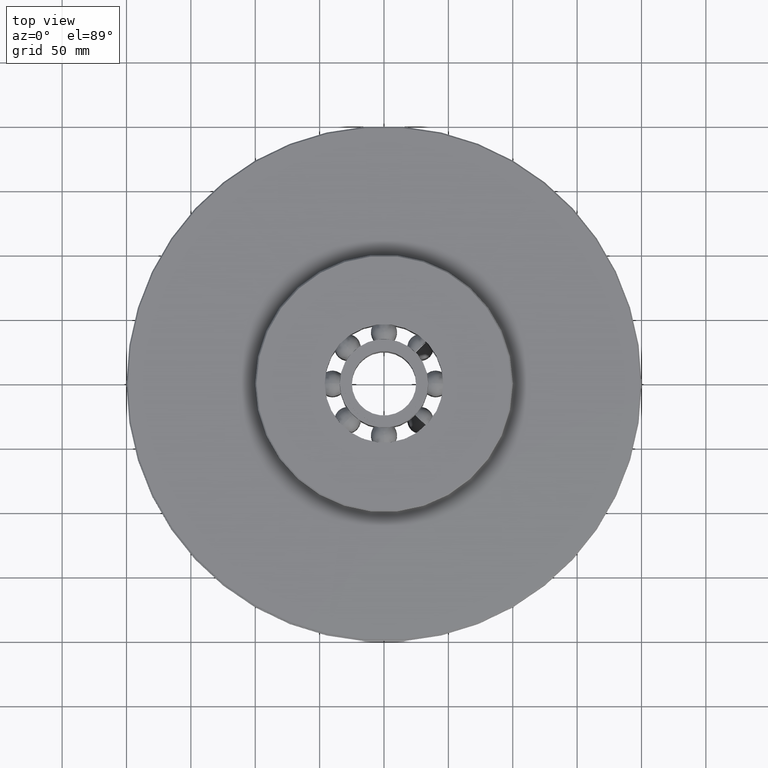
[diagram: clean part render]
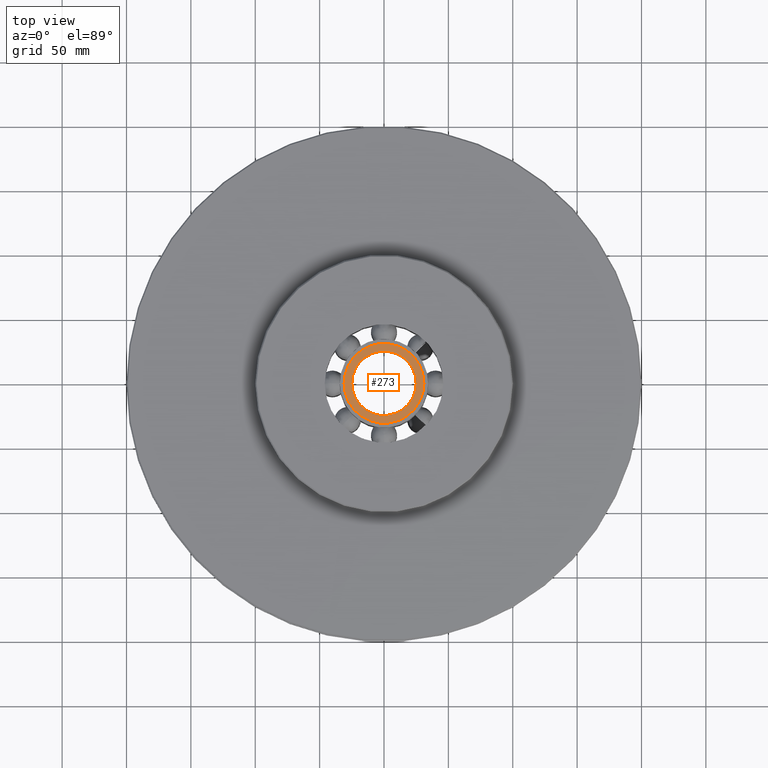
[diagram: same view with one face highlighted and labeled with its STEP entity id]
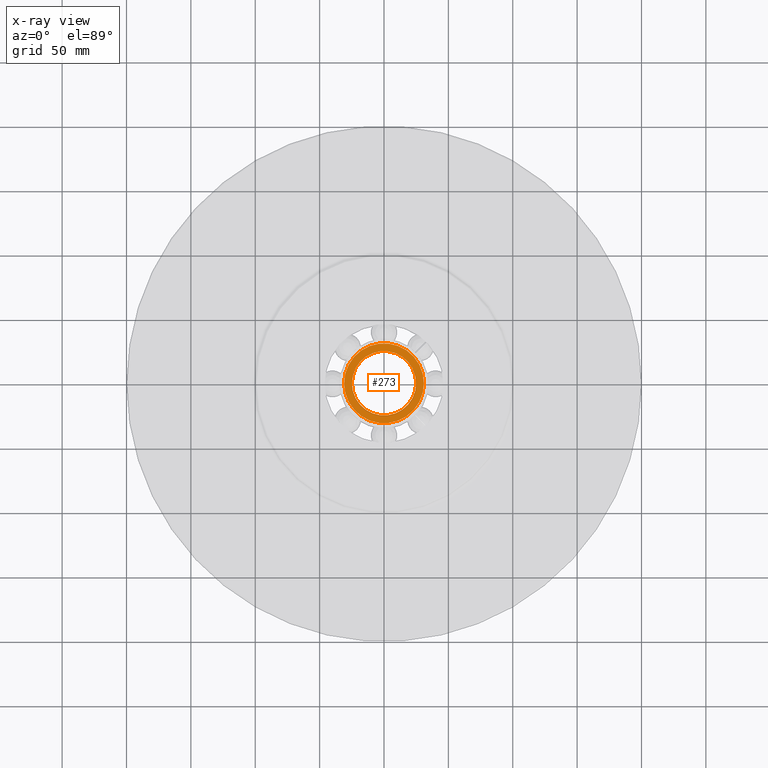
[diagram: x-ray of the same camera — body ghosted, the highlighted face saturated]
A machine part, top view. The second image highlights one B-rep face of the part: STEP entity #273.
The next image is the same camera in x-ray: the body ghosted, the highlighted face saturated — about 0% of this face is hidden behind the body in this view.
In plain terms, the highlighted planar face has unit normal (0, 0, 1).
Its self-contained STEP definition (entity closure, byte-faithful):
#273=ADVANCED_FACE('',(#611,#612),#613,.T.);
#611=FACE_BOUND('',#1021,.T.);
#612=FACE_OUTER_BOUND('',#1022,.T.);
#613=PLANE('',#1023);
#1021=EDGE_LOOP('',(#1875,#1876));
#1022=EDGE_LOOP('',(#1877,#1878));
#1023=AXIS2_PLACEMENT_3D('',#1879,#1880,#1881);
#1875=ORIENTED_EDGE('',*,*,#2956,.T.);
#1876=ORIENTED_EDGE('',*,*,#2822,.T.);
#1877=ORIENTED_EDGE('',*,*,#2941,.T.);
#1878=ORIENTED_EDGE('',*,*,#2953,.T.);
#1879=CARTESIAN_POINT('',(0.0,0.0,30.0));
#1880=DIRECTION('',(0.0,0.0,1.0));
#1881=DIRECTION('',(1.0,0.0,0.0));
#2822=EDGE_CURVE('',#3537,#3534,#3538,.T.);
#2941=EDGE_CURVE('',#3732,#3736,#3738,.T.);
#2953=EDGE_CURVE('',#3736,#3732,#3754,.T.);
#2956=EDGE_CURVE('',#3534,#3537,#3757,.T.);
#3534=VERTEX_POINT('',#6613);
#3537=VERTEX_POINT('',#6617);
#3538=CIRCLE('',#6618,25.0);
#3732=VERTEX_POINT('',#7839);
#3736=VERTEX_POINT('',#7844);
#3738=CIRCLE('',#7847,31.0);
#3754=CIRCLE('',#7865,31.0);
#3757=CIRCLE('',#7868,25.0);
#6613=CARTESIAN_POINT('',(25.0,0.0,30.0));
#6617=CARTESIAN_POINT('',(-25.0,3.06161699786838E-015,30.0));
#6618=AXIS2_PLACEMENT_3D('',#9461,#9462,#9463);
#7839=CARTESIAN_POINT('',(31.0,0.0,30.0));
#7844=CARTESIAN_POINT('',(-31.0,3.79640507735679E-015,30.0));
#7847=AXIS2_PLACEMENT_3D('',#9609,#9610,#9611);
#7865=AXIS2_PLACEMENT_3D('',#9629,#9630,#9631);
#7868=AXIS2_PLACEMENT_3D('',#9635,#9636,#9637);
#9461=CARTESIAN_POINT('',(0.0,0.0,30.0));
#9462=DIRECTION('',(0.0,0.0,-1.0));
#9463=DIRECTION('',(1.0,0.0,0.0));
#9609=CARTESIAN_POINT('',(0.0,0.0,30.0));
#9610=DIRECTION('',(0.0,0.0,1.0));
#9611=DIRECTION('',(1.0,0.0,0.0));
#9629=CARTESIAN_POINT('',(0.0,0.0,30.0));
#9630=DIRECTION('',(0.0,0.0,1.0));
#9631=DIRECTION('',(1.0,0.0,0.0));
#9635=CARTESIAN_POINT('',(0.0,0.0,30.0));
#9636=DIRECTION('',(0.0,0.0,-1.0));
#9637=DIRECTION('',(1.0,0.0,0.0));